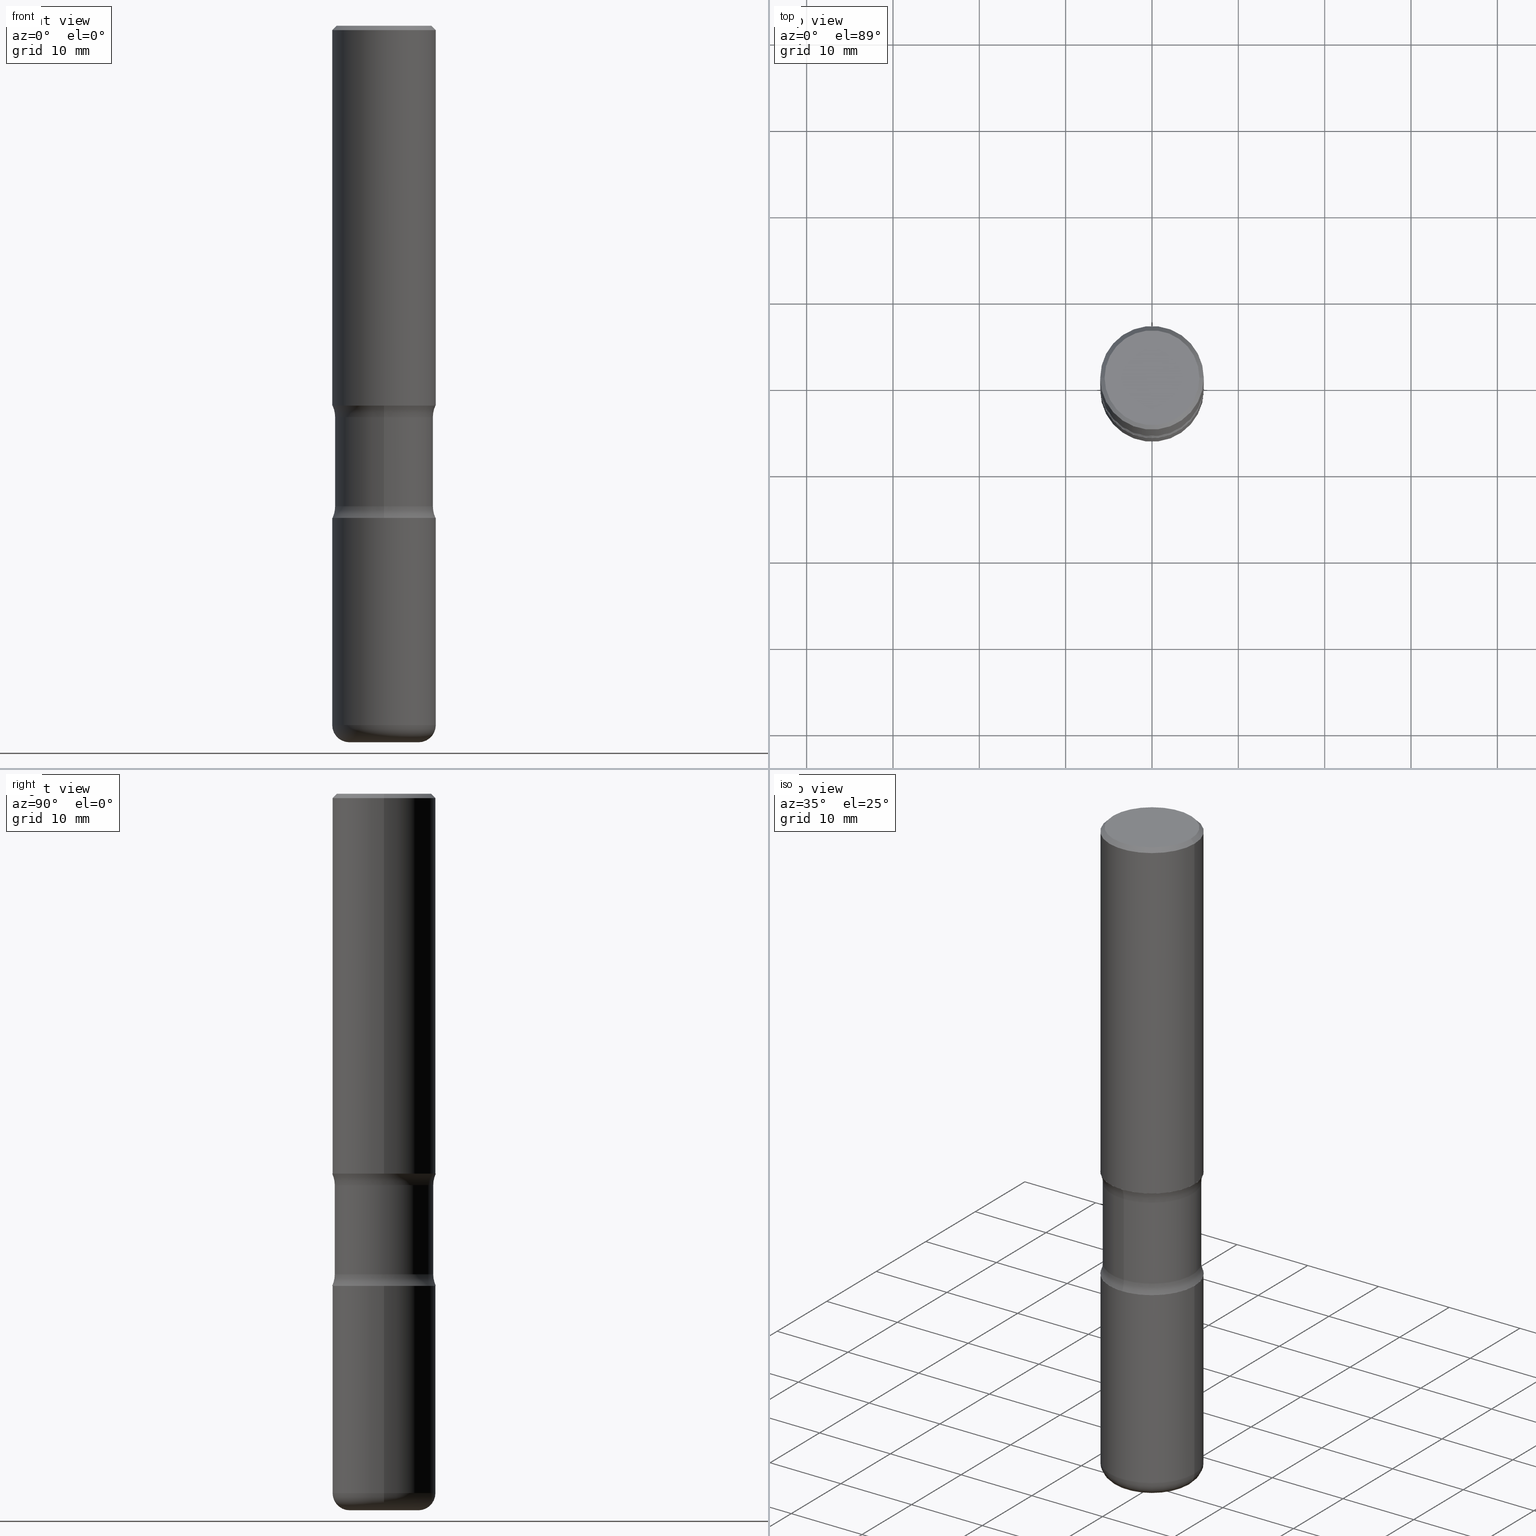
[diagram: canonical four-view strip — front | top / right | iso, engineering-drawing reading convention]
A machine part, canonical four-view strip (front | top / right | iso — engineering-drawing reading convention). The complete STEP part file that produces these views, byte-faithful:
ISO-10303-21;
HEADER;
FILE_DESCRIPTION (( 'STEP AP203' ),
    '1' );
FILE_NAME ('44977.STEP',
    '2024-03-02T04:14:57',
    ( '' ),
    ( '' ),
    'SwSTEP 2.0',
    'SolidWorks 2023',
    '' );
FILE_SCHEMA (( 'CONFIG_CONTROL_DESIGN' ));
ENDSEC;

DATA;
#1 = DIRECTION ( 'NONE',  ( 7.105427357601001859E-15, 1.000000000000000000, -3.491481338843145583E-15 ) ) ;
#2 = ORIENTED_EDGE ( 'NONE', *, *, #215, .T. ) ;
#3 = DIRECTION ( 'NONE',  ( -1.000000000000000000, 6.982962677686265922E-15, -4.883557194083112340E-29 ) ) ;
#4 = PRODUCT_DEFINITION_SHAPE ( 'NONE', 'NONE',  #555 ) ;
#5 =( GEOMETRIC_REPRESENTATION_CONTEXT ( 3 ) GLOBAL_UNCERTAINTY_ASSIGNED_CONTEXT ( ( #521 ) ) GLOBAL_UNIT_ASSIGNED_CONTEXT ( ( #268, #19, #68 ) ) REPRESENTATION_CONTEXT ( 'NONE', 'WORKASPACE' ) );
#6 = LINE ( 'NONE', #220, #358 ) ;
#7 = AXIS2_PLACEMENT_3D ( 'NONE', #257, #124, #303 ) ;
#8 = DIRECTION ( 'NONE',  ( -2.445468806185136597E-29, 3.491481338843145583E-15, 1.000000000000000000 ) ) ;
#9 = DIRECTION ( 'NONE',  ( -6.982962677686266711E-15, -1.000000000000000000, 3.491481338843145583E-15 ) ) ;
#10 = DIRECTION ( 'NONE',  ( 1.000000000000000000, -6.982962677686265922E-15, 4.876176775795935793E-29 ) ) ;
#11 = DIRECTION ( 'NONE',  ( -2.222787628876211285E-29, 3.810373458975038347E-15, 1.000000000000000000 ) ) ;
#12 = CARTESIAN_POINT ( 'NONE',  ( 4.236285612954515195E-29, -6.048293123277985022E-15, -1.732300000000001061 ) ) ;
#13 = DIRECTION ( 'NONE',  ( -2.445468806185136877E-29, 3.491481338843145188E-15, 1.000000000000000000 ) ) ;
#14 = CIRCLE ( 'NONE', #335, 0.1249999999999999029 ) ;
#15 = AXIS2_PLACEMENT_3D ( 'NONE', #270, #435, #191 ) ;
#16 = PERSON_AND_ORGANIZATION_ROLE ( 'design_owner' ) ;
#17 = CYLINDRICAL_SURFACE ( 'NONE', #95, 0.2362000000000004651 ) ;
#18 = EDGE_CURVE ( 'NONE', #84, #348, #438, .T. ) ;
#19 =( NAMED_UNIT ( * ) PLANE_ANGLE_UNIT ( ) SI_UNIT ( $, .RADIAN. ) );
#20 = CARTESIAN_POINT ( 'NONE',  ( 1.649375784469553915E-15, 0.2361999999999926103, -2.244100000000002648 ) ) ;
#21 = ORIENTED_EDGE ( 'NONE', *, *, #83, .F. ) ;
#22 = DIRECTION ( 'NONE',  ( 0.7071067811865471286, -7.319954787623254468E-15, -0.7071067811865479058 ) ) ;
#23 = ADVANCED_FACE ( 'NONE', ( #514 ), #123, .T. ) ;
#24 = EDGE_LOOP ( 'NONE', ( #467, #78, #2, #155 ) ) ;
#25 = PRODUCT_DEFINITION_FORMATION_WITH_SPECIFIED_SOURCE ( 'ANY', '', #523, .NOT_KNOWN. ) ;
#26 = VECTOR ( 'NONE', #410, 39.37007874015748143 ) ;
#27 = CARTESIAN_POINT ( 'NONE',  ( -1.620449627073584394E-15, -0.2362000000000083200, -2.244100000000000872 ) ) ;
#28 = VERTEX_POINT ( 'NONE', #122 ) ;
#29 = CARTESIAN_POINT ( 'NONE',  ( 4.175405657340879278E-46, -5.961372681521788801E-32, -1.707404996040164512E-17 ) ) ;
#30 = ORIENTED_EDGE ( 'NONE', *, *, #163, .T. ) ;
#31 = CARTESIAN_POINT ( 'NONE',  ( 4.467622709432113906E-29, -6.086281597024630126E-15, -1.785102556756280157 ) ) ;
#32 = ORIENTED_EDGE ( 'NONE', *, *, #225, .T. ) ;
#33 = TOROIDAL_SURFACE ( 'NONE', #221, 0.3494999999999997553, 0.1249999999999999029 ) ;
#34 = DIRECTION ( 'NONE',  ( 6.982962677686265922E-15, 1.000000000000000000, -3.810373458975038347E-15 ) ) ;
#35 = VERTEX_POINT ( 'NONE', #431 ) ;
#36 = PERSON_AND_ORGANIZATION_ROLE ( 'classification_officer' ) ;
#37 = VERTEX_POINT ( 'NONE', #167 ) ;
#38 = VERTEX_POINT ( 'NONE', #211 ) ;
#39 = ADVANCED_BREP_SHAPE_REPRESENTATION ( '44977', ( #490, #317, #301, #205 ), #5 ) ;
#40 = CC_DESIGN_SECURITY_CLASSIFICATION ( #386, ( #25 ) ) ;
#41 = CIRCLE ( 'NONE', #513, 0.2362000000000004374 ) ;
#42 = ORIENTED_EDGE ( 'NONE', *, *, #245, .F. ) ;
#43 = DIRECTION ( 'NONE',  ( -2.445468806185136597E-29, 3.491481338843145583E-15, 1.000000000000000000 ) ) ;
#44 = ORIENTED_EDGE ( 'NONE', *, *, #235, .T. ) ;
#45 = DIRECTION ( 'NONE',  ( -2.445468806185136597E-29, 3.491481338843145583E-15, 1.000000000000000000 ) ) ;
#46 = ADVANCED_FACE ( 'NONE', ( #425 ), #157, .T. ) ;
#47 = DIRECTION ( 'NONE',  ( 1.000000000000000000, -6.982962677686267499E-15, 4.883557194083112901E-29 ) ) ;
#48 = EDGE_CURVE ( 'NONE', #282, #469, #51, .T. ) ;
#49 = DIRECTION ( 'NONE',  ( -0.7071067811865471286, 2.468850131082252722E-15, -0.7071067811865479058 ) ) ;
#50 = CARTESIAN_POINT ( 'NONE',  ( 4.350253839501223252E-29, -5.885084136194481957E-15, -1.732300000000001061 ) ) ;
#51 = CIRCLE ( 'NONE', #558, 0.1249999999999999584 ) ;
#52 = DIRECTION ( 'NONE',  ( 1.000000000000000000, -6.982962677686264344E-15, 0.000000000000000000 ) ) ;
#53 = FACE_OUTER_BOUND ( 'NONE', #345, .T. ) ;
#54 = APPROVAL_ROLE ( '' ) ;
#55 = ADVANCED_FACE ( 'NONE', ( #398 ), #212, .T. ) ;
#56 = PERSON ( 'UNSPECIFIED', 'UNSPECIFIED', 'UNSPECIFIED', ('UNSPECIFIED'), ('UNSPECIFIED'), ('UNSPECIFIED') ) ;
#57 = DIRECTION ( 'NONE',  ( 2.222787628876211005E-29, -3.810373458975038347E-15, -1.000000000000000000 ) ) ;
#58 = CARTESIAN_POINT ( 'NONE',  ( 5.487876547960070357E-29, -7.835233272497908651E-15, -2.244100000000001760 ) ) ;
#59 = CIRCLE ( 'NONE', #102, 0.1575000000000005285 ) ;
#60 = CIRCLE ( 'NONE', #503, 0.2362000000000004374 ) ;
#61 = DIRECTION ( 'NONE',  ( 2.222787628876211285E-29, -3.810373458975038347E-15, -1.000000000000000000 ) ) ;
#62 = DIRECTION ( 'NONE',  ( -2.445468806185136597E-29, 3.491481338843145583E-15, 1.000000000000000000 ) ) ;
#63 = EDGE_CURVE ( 'NONE', #201, #37, #346, .T. ) ;
#64 = COORDINATED_UNIVERSAL_TIME_OFFSET ( 5, 0, .BEHIND. ) ;
#65 = ADVANCED_FACE ( 'NONE', ( #400 ), #223, .T. ) ;
#66 = DIRECTION ( 'NONE',  ( 2.222787628876211005E-29, -3.810373458975038347E-15, -1.000000000000000000 ) ) ;
#67 = EDGE_LOOP ( 'NONE', ( #383, #106, #128, #413 ) ) ;
#68 =( NAMED_UNIT ( * ) SI_UNIT ( $, .STERADIAN. ) SOLID_ANGLE_UNIT ( ) );
#69 = CARTESIAN_POINT ( 'NONE',  ( -0.2161999999999999755, 1.544631344304202170E-15, -1.707404996041232555E-17 ) ) ;
#70 = ORIENTED_EDGE ( 'NONE', *, *, #328, .F. ) ;
#71 = AXIS2_PLACEMENT_3D ( 'NONE', #412, #261, #10 ) ;
#72 = CIRCLE ( 'NONE', #338, 0.2244999999999999218 ) ;
#73 = CARTESIAN_POINT ( 'NONE',  ( 0.000000000000000000, 0.000000000000000000, 0.000000000000000000 ) ) ;
#74 = ORIENTED_EDGE ( 'NONE', *, *, #292, .F. ) ;
#75 = CARTESIAN_POINT ( 'NONE',  ( 7.763121964877756720E-29, -1.173553154510475730E-14, -3.267700000000001381 ) ) ;
#76 = VERTEX_POINT ( 'NONE', #229 ) ;
#77 = CARTESIAN_POINT ( 'NONE',  ( 7.798600022924401307E-29, -1.113433398957079310E-14, -3.189000000000000501 ) ) ;
#78 = ORIENTED_EDGE ( 'NONE', *, *, #292, .T. ) ;
#79 = ORGANIZATION ( 'UNSPECIFIED', 'UNSPECIFIED', '' ) ;
#80 = AXIS2_PLACEMENT_3D ( 'NONE', #485, #487, #176 ) ;
#81 = EDGE_LOOP ( 'NONE', ( #392, #475, #294, #119 ) ) ;
#82 = ORIENTED_EDGE ( 'NONE', *, *, #189, .F. ) ;
#83 = EDGE_CURVE ( 'NONE', #282, #340, #41, .T. ) ;
#84 = VERTEX_POINT ( 'NONE', #310 ) ;
#85 = LOCAL_TIME ( 23, 14, 57.00000000000000000, #64 ) ;
#86 = AXIS2_PLACEMENT_3D ( 'NONE', #459, #325, #274 ) ;
#87 = EDGE_LOOP ( 'NONE', ( #277, #250 ) ) ;
#88 = EDGE_CURVE ( 'NONE', #495, #384, #6, .T. ) ;
#89 = DIRECTION ( 'NONE',  ( 2.222787628876211005E-29, -3.810373458975038347E-15, -1.000000000000000000 ) ) ;
#90 = ORIENTED_EDGE ( 'NONE', *, *, #18, .T. ) ;
#91 = CARTESIAN_POINT ( 'NONE',  ( 7.991058417971172834E-29, -1.140911357093774960E-14, -3.267700000000000937 ) ) ;
#92 = CC_DESIGN_PERSON_AND_ORGANIZATION_ASSIGNMENT ( #148, #16, ( #523 ) ) ;
#93 = DIRECTION ( 'NONE',  ( -2.445468806185136597E-29, 3.491481338843145583E-15, 1.000000000000000000 ) ) ;
#94 = AXIS2_PLACEMENT_3D ( 'NONE', #366, #276, #233 ) ;
#95 = AXIS2_PLACEMENT_3D ( 'NONE', #267, #132, #316 ) ;
#96 = CARTESIAN_POINT ( 'NONE',  ( 5.370507678029178581E-29, -7.634035811667759693E-15, -2.191297443243722665 ) ) ;
#97 =( LENGTH_UNIT ( ) NAMED_UNIT ( * ) SI_UNIT ( $, .METRE. ) );
#98 = FACE_OUTER_BOUND ( 'NONE', #536, .T. ) ;
#99 = CC_DESIGN_PERSON_AND_ORGANIZATION_ASSIGNMENT ( #527, #531, ( #25 ) ) ;
#100 = SECURITY_CLASSIFICATION_LEVEL ( 'unclassified' ) ;
#101 = LINE ( 'NONE', #149, #136 ) ;
#102 = AXIS2_PLACEMENT_3D ( 'NONE', #222, #43, #432 ) ;
#103 = COORDINATED_UNIVERSAL_TIME_OFFSET ( 5, 0, .BEHIND. ) ;
#104 = ADVANCED_FACE ( 'NONE', ( #230 ), #394, .T. ) ;
#105 = DIRECTION ( 'NONE',  ( -2.445468806185136597E-29, 3.491481338843145583E-15, 1.000000000000000000 ) ) ;
#106 = ORIENTED_EDGE ( 'NONE', *, *, #489, .T. ) ;
#107 = DIRECTION ( 'NONE',  ( -2.445468806185136877E-29, 3.491481338843145188E-15, 1.000000000000000000 ) ) ;
#108 = ORIENTED_EDGE ( 'NONE', *, *, #351, .T. ) ;
#109 = DATE_TIME_ROLE ( 'classification_date' ) ;
#110 = CARTESIAN_POINT ( 'NONE',  ( 0.2362000000000004651, -1.649375784469499483E-15, 1.151752954443002330E-29 ) ) ;
#111 = ORIENTED_EDGE ( 'NONE', *, *, #245, .T. ) ;
#112 = APPROVAL_STATUS ( 'not_yet_approved' ) ;
#113 = AXIS2_PLACEMENT_3D ( 'NONE', #96, #224, #312 ) ;
#114 = LINE ( 'NONE', #289, #166 ) ;
#115 = ORIENTED_EDGE ( 'NONE', *, *, #328, .T. ) ;
#116 = CARTESIAN_POINT ( 'NONE',  ( 4.460794581293164066E-29, -6.096059865152526970E-15, -1.785102556756280379 ) ) ;
#117 = ORIENTED_EDGE ( 'NONE', *, *, #300, .T. ) ;
#118 = CARTESIAN_POINT ( 'NONE',  ( 5.370507678029178581E-29, -7.634035811667759693E-15, -2.191297443243722665 ) ) ;
#119 = ORIENTED_EDGE ( 'NONE', *, *, #215, .F. ) ;
#120 = CIRCLE ( 'NONE', #436, 0.2245000000000001161 ) ;
#121 = ADVANCED_FACE ( 'NONE', ( #188 ), #17, .T. ) ;
#122 = CARTESIAN_POINT ( 'NONE',  ( 1.567675121140621237E-15, 0.2244999999999924833, -2.191297443243723553 ) ) ;
#123 = CYLINDRICAL_SURFACE ( 'NONE', #7, 0.2362000000000002709 ) ;
#124 = DIRECTION ( 'NONE',  ( -2.445468806185136597E-29, 3.491481338843145583E-15, 1.000000000000000000 ) ) ;
#125 = TOROIDAL_SURFACE ( 'NONE', #154, 0.3495000000000000329, 0.1249999999999999861 ) ;
#126 = FACE_OUTER_BOUND ( 'NONE', #67, .T. ) ;
#127 = AXIS2_PLACEMENT_3D ( 'NONE', #227, #11, #532 ) ;
#128 = ORIENTED_EDGE ( 'NONE', *, *, #63, .T. ) ;
#129 = CARTESIAN_POINT ( 'NONE',  ( -0.2362000000000000766, 1.579546157692633424E-15, -0.02000000000000013572 ) ) ;
#130 = DIRECTION ( 'NONE',  ( -2.445468806185136597E-29, 3.491481338843145583E-15, 1.000000000000000000 ) ) ;
#131 = CARTESIAN_POINT ( 'NONE',  ( 1.863038902682376506E-29, -1.302620709348179108E-14, -2.244100000000001760 ) ) ;
#132 = DIRECTION ( 'NONE',  ( -2.445468806185136597E-29, 3.491481338843145583E-15, 1.000000000000000000 ) ) ;
#133 = PLANE ( 'NONE',  #247 ) ;
#134 = AXIS2_PLACEMENT_3D ( 'NONE', #91, #8, #295 ) ;
#135 = DIRECTION ( 'NONE',  ( 2.222787628876211005E-29, -3.810373458975038347E-15, -1.000000000000000000 ) ) ;
#136 = VECTOR ( 'NONE', #329, 39.37007874015748143 ) ;
#137 = PERSON_AND_ORGANIZATION ( #56, #79 ) ;
#138 = FACE_OUTER_BOUND ( 'NONE', #547, .T. ) ;
#139 = CALENDAR_DATE ( 2024, 1, 3 ) ;
#140 = DIRECTION ( 'NONE',  ( 2.438088387897960049E-29, -3.491481338843145188E-15, -1.000000000000000000 ) ) ;
#141 = EDGE_CURVE ( 'NONE', #469, #28, #266, .T. ) ;
#142 = CC_DESIGN_PERSON_AND_ORGANIZATION_ASSIGNMENT ( #502, #36, ( #386 ) ) ;
#143 = DIRECTION ( 'NONE',  ( 1.000000000000000000, 0.000000000000000000, 0.000000000000000000 ) ) ;
#144 = DIRECTION ( 'NONE',  ( 1.000000000000000000, -6.982962677686266711E-15, 0.000000000000000000 ) ) ;
#145 = AXIS2_PLACEMENT_3D ( 'NONE', #309, #399, #517 ) ;
#146 = VERTEX_POINT ( 'NONE', #440 ) ;
#147 = CLOSED_SHELL ( 'NONE', ( #524, #65, #187, #385, #121, #507 ) ) ;
#148 = PERSON_AND_ORGANIZATION ( #56, #79 ) ;
#149 = CARTESIAN_POINT ( 'NONE',  ( -1.540181800499631152E-15, -0.2245000000000117735, -3.267700000000000049 ) ) ;
#150 = ORIENTED_EDGE ( 'NONE', *, *, #308, .T. ) ;
#151 = CARTESIAN_POINT ( 'NONE',  ( 1.567675121140644508E-15, 0.2244999999999882645, -3.267700000000002269 ) ) ;
#152 = ORIENTED_EDGE ( 'NONE', *, *, #308, .F. ) ;
#153 = CARTESIAN_POINT ( 'NONE',  ( 4.467622709432113906E-29, -6.086281597024630126E-15, -1.785102556756280157 ) ) ;
#154 = AXIS2_PLACEMENT_3D ( 'NONE', #226, #178, #474 ) ;
#155 = ORIENTED_EDGE ( 'NONE', *, *, #141, .F. ) ;
#156 = PERSON_AND_ORGANIZATION ( #56, #79 ) ;
#157 = CONICAL_SURFACE ( 'NONE', #185, 0.2362000000000000766, 0.7853981633974477239 ) ;
#158 = DIRECTION ( 'NONE',  ( -1.000000000000000000, 6.982962677686265922E-15, -4.876176775795935793E-29 ) ) ;
#159 = ORIENTED_EDGE ( 'NONE', *, *, #351, .F. ) ;
#160 = ADVANCED_FACE ( 'NONE', ( #53 ), #269, .F. ) ;
#161 = DIRECTION ( 'NONE',  ( 1.000000000000000000, -6.982962677686267499E-15, 4.883557194083112901E-29 ) ) ;
#162 = CARTESIAN_POINT ( 'NONE',  ( -2.397744050221097052E-15, -0.3495000000000076934, -2.191297443243721332 ) ) ;
#163 = EDGE_CURVE ( 'NONE', #495, #376, #360, .T. ) ;
#164 = ORIENTED_EDGE ( 'NONE', *, *, #508, .F. ) ;
#165 = CIRCLE ( 'NONE', #557, 0.07870000000000021423 ) ;
#166 = VECTOR ( 'NONE', #22, 39.37007874015748143 ) ;
#167 = CARTESIAN_POINT ( 'NONE',  ( 0.2362000000000006317, -1.278370977404029278E-14, -3.189000000000000501 ) ) ;
#168 = ORIENTED_EDGE ( 'NONE', *, *, #540, .F. ) ;
#169 = DIRECTION ( 'NONE',  ( 2.222787628876211005E-29, -3.810373458975038347E-15, -1.000000000000000000 ) ) ;
#170 = ORIENTED_EDGE ( 'NONE', *, *, #489, .F. ) ;
#171 = AXIS2_PLACEMENT_3D ( 'NONE', #505, #3, #420 ) ;
#172 = FACE_OUTER_BOUND ( 'NONE', #417, .T. ) ;
#173 = AXIS2_PLACEMENT_3D ( 'NONE', #75, #66, #284 ) ;
#174 = DIRECTION ( 'NONE',  ( 6.982962677686265922E-15, 1.000000000000000000, -3.469747663417770691E-15 ) ) ;
#175 = FACE_OUTER_BOUND ( 'NONE', #515, .T. ) ;
#176 = DIRECTION ( 'NONE',  ( -1.000000000000000000, 6.982962677686266711E-15, 0.000000000000000000 ) ) ;
#177 = EDGE_CURVE ( 'NONE', #427, #35, #466, .T. ) ;
#178 = DIRECTION ( 'NONE',  ( 2.222787628876211005E-29, -3.810373458975038347E-15, -1.000000000000000000 ) ) ;
#179 = DESIGN_CONTEXT ( 'detailed design', #511, 'design' ) ;
#180 = DIRECTION ( 'NONE',  ( 6.982962677686265922E-15, 1.000000000000000000, -3.469747663417772663E-15 ) ) ;
#181 = DATE_AND_TIME ( #278, #344 ) ;
#182 = AXIS2_PLACEMENT_3D ( 'NONE', #528, #355, #47 ) ;
#183 = APPROVAL ( #228, 'UNSPECIFIED' ) ;
#184 = DIRECTION ( 'NONE',  ( -2.445468806185136597E-29, 3.491481338843145583E-15, 1.000000000000000000 ) ) ;
#185 = AXIS2_PLACEMENT_3D ( 'NONE', #209, #387, #552 ) ;
#186 = APPLICATION_PROTOCOL_DEFINITION ( 'international standard', 'config_control_design', 1994, #511 ) ;
#187 = ADVANCED_FACE ( 'NONE', ( #98 ), #443, .T. ) ;
#188 = FACE_OUTER_BOUND ( 'NONE', #234, .T. ) ;
#189 = EDGE_CURVE ( 'NONE', #206, #38, #260, .T. ) ;
#190 = APPLICATION_PROTOCOL_DEFINITION ( 'international standard', 'config_control_design', 1994, #539 ) ;
#191 = DIRECTION ( 'NONE',  ( 6.982962677686265922E-15, 1.000000000000000000, -3.810373458975038347E-15 ) ) ;
#192 = VERTEX_POINT ( 'NONE', #361 ) ;
#193 = DIRECTION ( 'NONE',  ( 6.982962677686265922E-15, 1.000000000000000000, -3.810373458975038347E-15 ) ) ;
#194 = FACE_OUTER_BOUND ( 'NONE', #238, .T. ) ;
#195 = ORIENTED_EDGE ( 'NONE', *, *, #259, .T. ) ;
#196 = EDGE_CURVE ( 'NONE', #551, #38, #60, .T. ) ;
#197 = DIRECTION ( 'NONE',  ( -2.445468806185136597E-29, 3.491481338843145583E-15, 1.000000000000000000 ) ) ;
#198 = ORIENTED_EDGE ( 'NONE', *, *, #63, .F. ) ;
#199 = DATE_AND_TIME ( #418, #403 ) ;
#200 = DIRECTION ( 'NONE',  ( 6.982962677686265922E-15, 1.000000000000000000, -3.650576383515720449E-15 ) ) ;
#201 = VERTEX_POINT ( 'NONE', #433 ) ;
#202 = CALENDAR_DATE ( 2024, 1, 3 ) ;
#203 = LINE ( 'NONE', #379, #455 ) ;
#204 = CC_DESIGN_DATE_AND_TIME_ASSIGNMENT ( #488, #447, ( #555 ) ) ;
#205 = AXIS2_PLACEMENT_3D ( 'NONE', #442, #369, #143 ) ;
#206 = VERTEX_POINT ( 'NONE', #522 ) ;
#207 = CARTESIAN_POINT ( 'NONE',  ( 7.798600022924401307E-29, -1.113433398957079310E-14, -3.189000000000000501 ) ) ;
#208 = ADVANCED_FACE ( 'NONE', ( #138 ), #529, .F. ) ;
#209 = CARTESIAN_POINT ( 'NONE',  ( 4.890937612370306439E-31, -6.982962677686338448E-17, -0.02000000000000013572 ) ) ;
#210 = DIRECTION ( 'NONE',  ( 1.000000000000000000, -6.982962677686266711E-15, 4.875778670202486388E-29 ) ) ;
#211 = CARTESIAN_POINT ( 'NONE',  ( -0.2362000000000004374, -7.806481689168991326E-15, -2.244100000000001760 ) ) ;
#212 = CONICAL_SURFACE ( 'NONE', #80, 0.2362000000000000766, 0.7853981633974477239 ) ;
#213 = CC_DESIGN_APPROVAL ( #480, ( #386 ) ) ;
#214 = CIRCLE ( 'NONE', #94, 0.2362000000000004651 ) ;
#215 = EDGE_CURVE ( 'NONE', #76, #28, #263, .T. ) ;
#216 = EDGE_LOOP ( 'NONE', ( #460, #299, #472, #198 ) ) ;
#217 = DIRECTION ( 'NONE',  ( 1.000000000000000000, -6.982962677686266711E-15, 4.876176775795935793E-29 ) ) ;
#218 = ORIENTED_EDGE ( 'NONE', *, *, #177, .T. ) ;
#219 = FACE_OUTER_BOUND ( 'NONE', #468, .T. ) ;
#220 = CARTESIAN_POINT ( 'NONE',  ( -0.2362000000000002709, 1.678301941865358564E-15, -1.161852468318210018E-29 ) ) ;
#221 = AXIS2_PLACEMENT_3D ( 'NONE', #116, #353, #34 ) ;
#222 = CARTESIAN_POINT ( 'NONE',  ( 7.991058417971172834E-29, -1.140911357093774960E-14, -3.267700000000000937 ) ) ;
#223 = TOROIDAL_SURFACE ( 'NONE', #182, 0.1575000000000005285, 0.07870000000000022811 ) ;
#224 = DIRECTION ( 'NONE',  ( 2.222787628876211005E-29, -3.810373458975038347E-15, -1.000000000000000000 ) ) ;
#225 = EDGE_CURVE ( 'NONE', #38, #551, #283, .T. ) ;
#226 = CARTESIAN_POINT ( 'NONE',  ( 5.358749542525768268E-29, -7.650874130940154626E-15, -2.191297443243722665 ) ) ;
#227 = CARTESIAN_POINT ( 'NONE',  ( 1.863038902682376506E-29, -1.302620709348179108E-14, -2.244100000000001760 ) ) ;
#228 = APPROVAL_STATUS ( 'not_yet_approved' ) ;
#229 = CARTESIAN_POINT ( 'NONE',  ( 1.567675121140610785E-15, 0.2244999999999938434, -1.785102556756280823 ) ) ;
#230 = FACE_OUTER_BOUND ( 'NONE', #81, .T. ) ;
#231 = VECTOR ( 'NONE', #402, 39.37007874015748143 ) ;
#232 = DIRECTION ( 'NONE',  ( 1.000000000000000000, -6.982962677686266711E-15, 4.875778670202486388E-29 ) ) ;
#233 = DIRECTION ( 'NONE',  ( 1.000000000000000000, -6.982962677686266711E-15, 0.000000000000000000 ) ) ;
#234 = EDGE_LOOP ( 'NONE', ( #82, #542, #195, #415 ) ) ;
#235 = EDGE_CURVE ( 'NONE', #35, #427, #370, .T. ) ;
#236 = PLANE ( 'NONE',  #71 ) ;
#237 = LOCAL_TIME ( 23, 14, 57.00000000000000000, #331 ) ;
#238 = EDGE_LOOP ( 'NONE', ( #70, #422 ) ) ;
#239 = AXIS2_PLACEMENT_3D ( 'NONE', #319, #9, #441 ) ;
#240 = DATE_AND_TIME ( #202, #237 ) ;
#241 = CARTESIAN_POINT ( 'NONE',  ( 4.350253839501223252E-29, -5.885084136194481957E-15, -1.732300000000001061 ) ) ;
#242 = ORIENTED_EDGE ( 'NONE', *, *, #320, .F. ) ;
#243 = DIRECTION ( 'NONE',  ( -2.445468806185136597E-29, 3.491481338843145583E-15, 1.000000000000000000 ) ) ;
#244 = ORIENTED_EDGE ( 'NONE', *, *, #367, .T. ) ;
#245 = EDGE_CURVE ( 'NONE', #348, #84, #404, .T. ) ;
#246 = CC_DESIGN_PERSON_AND_ORGANIZATION_ASSIGNMENT ( #137, #321, ( #25 ) ) ;
#247 = AXIS2_PLACEMENT_3D ( 'NONE', #12, #61, #193 ) ;
#248 = ORIENTED_EDGE ( 'NONE', *, *, #540, .T. ) ;
#249 = AXIS2_PLACEMENT_3D ( 'NONE', #241, #414, #281 ) ;
#250 = ORIENTED_EDGE ( 'NONE', *, *, #235, .F. ) ;
#251 = ORIENTED_EDGE ( 'NONE', *, *, #88, .F. ) ;
#252 = EDGE_CURVE ( 'NONE', #347, #469, #101, .T. ) ;
#253 = EDGE_LOOP ( 'NONE', ( #374, #117, #380, #290 ) ) ;
#254 = AXIS2_PLACEMENT_3D ( 'NONE', #207, #341, #465 ) ;
#255 = AXIS2_PLACEMENT_3D ( 'NONE', #494, #550, #158 ) ;
#256 = CARTESIAN_POINT ( 'NONE',  ( -0.2362000000000004651, -1.380759433162061850E-15, -1.732300000000001061 ) ) ;
#257 = CARTESIAN_POINT ( 'NONE',  ( 0.000000000000000000, 0.000000000000000000, 0.000000000000000000 ) ) ;
#258 = DIRECTION ( 'NONE',  ( 2.438088387897960049E-29, -3.491481338843145188E-15, -1.000000000000000000 ) ) ;
#259 = EDGE_CURVE ( 'NONE', #37, #551, #500, .T. ) ;
#260 = LINE ( 'NONE', #477, #231 ) ;
#261 = DIRECTION ( 'NONE',  ( -2.438088387897960049E-29, 3.491481338843145188E-15, 1.000000000000000000 ) ) ;
#262 = ADVANCED_FACE ( 'NONE', ( #416 ), #408, .T. ) ;
#263 = LINE ( 'NONE', #151, #388 ) ;
#264 = LOCAL_TIME ( 23, 14, 57.00000000000000000, #103 ) ;
#265 = CARTESIAN_POINT ( 'NONE',  ( 7.798600022924401307E-29, -1.113433398957079310E-14, -3.189000000000000501 ) ) ;
#266 = CIRCLE ( 'NONE', #113, 0.2245000000000001161 ) ;
#267 = CARTESIAN_POINT ( 'NONE',  ( 0.000000000000000000, 0.000000000000000000, 0.000000000000000000 ) ) ;
#268 =( CONVERSION_BASED_UNIT ( 'INCH', #401 ) LENGTH_UNIT ( ) NAMED_UNIT ( #553 ) );
#269 = PLANE ( 'NONE',  #127 ) ;
#270 = CARTESIAN_POINT ( 'NONE',  ( 4.460794581293164066E-29, -6.096059865152526970E-15, -1.785102556756280379 ) ) ;
#271 = CALENDAR_DATE ( 2024, 1, 3 ) ;
#272 = EDGE_CURVE ( 'NONE', #192, #384, #426, .T. ) ;
#273 = TOROIDAL_SURFACE ( 'NONE', #296, 0.1575000000000005285, 0.07870000000000022811 ) ;
#274 = DIRECTION ( 'NONE',  ( 1.000000000000000000, -6.982962677686266711E-15, 0.000000000000000000 ) ) ;
#275 = PERSON_AND_ORGANIZATION ( #56, #79 ) ;
#276 = DIRECTION ( 'NONE',  ( -2.445468806185136597E-29, 3.491481338843145583E-15, 1.000000000000000000 ) ) ;
#277 = ORIENTED_EDGE ( 'NONE', *, *, #177, .F. ) ;
#278 = CALENDAR_DATE ( 2024, 1, 3 ) ;
#279 = EDGE_CURVE ( 'NONE', #76, #347, #287, .T. ) ;
#280 = PRODUCT_RELATED_PRODUCT_CATEGORY ( 'detail', '', ( #523 ) ) ;
#281 = DIRECTION ( 'NONE',  ( 6.982962677686265922E-15, 1.000000000000000000, -3.469747663417772663E-15 ) ) ;
#282 = VERTEX_POINT ( 'NONE', #27 ) ;
#283 = CIRCLE ( 'NONE', #493, 0.2362000000000004374 ) ;
#284 = DIRECTION ( 'NONE',  ( 6.982962677686265922E-15, 1.000000000000000000, -4.867435178020957969E-15 ) ) ;
#285 = CIRCLE ( 'NONE', #134, 0.1575000000000005285 ) ;
#286 = EDGE_LOOP ( 'NONE', ( #462, #32 ) ) ;
#287 = CIRCLE ( 'NONE', #324, 0.2244999999999999218 ) ;
#288 = CC_DESIGN_PERSON_AND_ORGANIZATION_ASSIGNMENT ( #323, #492, ( #555 ) ) ;
#289 = CARTESIAN_POINT ( 'NONE',  ( 0.2362000000000000766, -1.690279253850499560E-15, -0.02000000000000013572 ) ) ;
#290 = ORIENTED_EDGE ( 'NONE', *, *, #437, .F. ) ;
#291 = ADVANCED_FACE ( 'NONE', ( #336 ), #546, .T. ) ;
#292 = EDGE_CURVE ( 'NONE', #347, #76, #72, .T. ) ;
#293 = DIRECTION ( 'NONE',  ( -2.445468806185136597E-29, 3.491481338843145583E-15, 1.000000000000000000 ) ) ;
#294 = ORIENTED_EDGE ( 'NONE', *, *, #470, .F. ) ;
#295 = DIRECTION ( 'NONE',  ( 1.000000000000000000, -6.982962677686262766E-15, 0.000000000000000000 ) ) ;
#296 = AXIS2_PLACEMENT_3D ( 'NONE', #265, #293, #161 ) ;
#297 = ORIENTED_EDGE ( 'NONE', *, *, #48, .T. ) ;
#298 = AXIS2_PLACEMENT_3D ( 'NONE', #371, #197, #144 ) ;
#299 = ORIENTED_EDGE ( 'NONE', *, *, #463, .T. ) ;
#300 = EDGE_CURVE ( 'NONE', #84, #192, #114, .T. ) ;
#301 = MANIFOLD_SOLID_BREP ( 'Body-Move/Copy2[4]', #381 ) ;
#302 = ORIENTED_EDGE ( 'NONE', *, *, #470, .T. ) ;
#303 = DIRECTION ( 'NONE',  ( 1.000000000000000000, -6.982962677686266711E-15, 4.876176775795936353E-29 ) ) ;
#304 = AXIS2_PLACEMENT_3D ( 'NONE', #77, #45, #52 ) ;
#305 = CARTESIAN_POINT ( 'NONE',  ( -1.580315713786620296E-15, -0.2245000000000077767, -2.191297443243721776 ) ) ;
#306 = AXIS2_PLACEMENT_3D ( 'NONE', #364, #184, #322 ) ;
#307 = ORIENTED_EDGE ( 'NONE', *, *, #189, .T. ) ;
#308 = EDGE_CURVE ( 'NONE', #384, #192, #483, .T. ) ;
#309 = CARTESIAN_POINT ( 'NONE',  ( 5.358749542525768268E-29, -7.650874130940154626E-15, -2.191297443243722665 ) ) ;
#310 = CARTESIAN_POINT ( 'NONE',  ( 0.2161999999999999755, -1.586759460484352185E-15, -1.707404996039081677E-17 ) ) ;
#311 = CYLINDRICAL_SURFACE ( 'NONE', #444, 0.2362000000000004651 ) ;
#312 = DIRECTION ( 'NONE',  ( 6.982962677686265922E-15, 1.000000000000000000, -3.650576383515717294E-15 ) ) ;
#313 = VECTOR ( 'NONE', #49, 39.37007874015748143 ) ;
#314 = FACE_OUTER_BOUND ( 'NONE', #87, .T. ) ;
#315 = AXIS2_PLACEMENT_3D ( 'NONE', #29, #105, #232 ) ;
#316 = DIRECTION ( 'NONE',  ( 1.000000000000000000, -6.982962677686266711E-15, 4.876176775795935793E-29 ) ) ;
#317 = MANIFOLD_SOLID_BREP ( 'Body-Move/Copy2[2]', #396 ) ;
#318 = CARTESIAN_POINT ( 'NONE',  ( 0.2362000000000004374, -9.484609056967408331E-15, -2.244100000000001760 ) ) ;
#319 = CARTESIAN_POINT ( 'NONE',  ( 0.1575000000000005285, -1.223415061130638295E-14, -3.189000000000000501 ) ) ;
#320 = EDGE_CURVE ( 'NONE', #376, #192, #203, .T. ) ;
#321 = PERSON_AND_ORGANIZATION_ROLE ( 'design_supplier' ) ;
#322 = DIRECTION ( 'NONE',  ( 1.000000000000000000, -6.982962677686266711E-15, 0.000000000000000000 ) ) ;
#323 = PERSON_AND_ORGANIZATION ( #56, #79 ) ;
#324 = AXIS2_PLACEMENT_3D ( 'NONE', #153, #456, #200 ) ;
#325 = DIRECTION ( 'NONE',  ( -2.445468806185136597E-29, 3.491481338843145583E-15, 1.000000000000000000 ) ) ;
#326 = ORIENTED_EDGE ( 'NONE', *, *, #196, .F. ) ;
#327 = APPROVAL_STATUS ( 'not_yet_approved' ) ;
#328 = EDGE_CURVE ( 'NONE', #376, #495, #214, .T. ) ;
#329 = DIRECTION ( 'NONE',  ( 2.222787628876211005E-29, -3.810373458975038347E-15, -1.000000000000000000 ) ) ;
#330 = EDGE_LOOP ( 'NONE', ( #21, #297, #368, #159 ) ) ;
#331 = COORDINATED_UNIVERSAL_TIME_OFFSET ( 5, 0, .BEHIND. ) ;
#332 = DIRECTION ( 'NONE',  ( 2.222787628876211005E-29, -3.810373458975038347E-15, -1.000000000000000000 ) ) ;
#333 = ORIENTED_EDGE ( 'NONE', *, *, #259, .F. ) ;
#334 = APPROVAL_DATE_TIME ( #240, #480 ) ;
#335 = AXIS2_PLACEMENT_3D ( 'NONE', #484, #363, #486 ) ;
#336 = FACE_OUTER_BOUND ( 'NONE', #560, .T. ) ;
#337 = ORIENTED_EDGE ( 'NONE', *, *, #320, .T. ) ;
#338 = AXIS2_PLACEMENT_3D ( 'NONE', #31, #497, #504 ) ;
#339 = CARTESIAN_POINT ( 'NONE',  ( 2.440545455851403984E-15, 0.3494999999999924278, -2.191297443243723997 ) ) ;
#340 = VERTEX_POINT ( 'NONE', #20 ) ;
#341 = DIRECTION ( 'NONE',  ( -2.445468806185136597E-29, 3.491481338843145583E-15, 1.000000000000000000 ) ) ;
#342 = DIRECTION ( 'NONE',  ( 1.000000000000000000, -6.860497997771530774E-15, 4.836893577482214338E-29 ) ) ;
#343 = ADVANCED_FACE ( 'NONE', ( #544 ), #448, .F. ) ;
#344 = LOCAL_TIME ( 23, 14, 57.00000000000000000, #496 ) ;
#345 = EDGE_LOOP ( 'NONE', ( #501, #449 ) ) ;
#346 = CIRCLE ( 'NONE', #239, 0.07870000000000021423 ) ;
#347 = VERTEX_POINT ( 'NONE', #451 ) ;
#348 = VERTEX_POINT ( 'NONE', #69 ) ;
#349 = CARTESIAN_POINT ( 'NONE',  ( 5.487876547960070357E-29, -7.835233272497908651E-15, -2.244100000000001760 ) ) ;
#350 = ORIENTED_EDGE ( 'NONE', *, *, #367, .F. ) ;
#351 = EDGE_CURVE ( 'NONE', #340, #28, #548, .T. ) ;
#352 = CIRCLE ( 'NONE', #171, 0.1249999999999999029 ) ;
#353 = DIRECTION ( 'NONE',  ( 2.222787628876211005E-29, -3.810373458975038347E-15, -1.000000000000000000 ) ) ;
#354 = DIRECTION ( 'NONE',  ( 1.000000000000000000, -6.982962677686264344E-15, 0.000000000000000000 ) ) ;
#355 = DIRECTION ( 'NONE',  ( -2.445468806185136597E-29, 3.491481338843145583E-15, 1.000000000000000000 ) ) ;
#356 = APPROVAL_DATE_TIME ( #181, #183 ) ;
#357 = CARTESIAN_POINT ( 'NONE',  ( 1.590673181943243464E-28, -7.341872789436314080E-17, -3.267700000000000937 ) ) ;
#358 = VECTOR ( 'NONE', #13, 39.37007874015748143 ) ;
#359 = APPROVAL_PERSON_ORGANIZATION ( #275, #183, #409 ) ;
#360 = CIRCLE ( 'NONE', #306, 0.2362000000000004651 ) ;
#361 = CARTESIAN_POINT ( 'NONE',  ( 0.2362000000000000766, -1.690279253850499560E-15, -0.02000000000000013572 ) ) ;
#362 = ADVANCED_FACE ( 'NONE', ( #194 ), #236, .F. ) ;
#363 = DIRECTION ( 'NONE',  ( 1.000000000000000000, -6.860497997771530774E-15, 4.836893577482214338E-29 ) ) ;
#364 = CARTESIAN_POINT ( 'NONE',  ( 4.236285612954515195E-29, -6.048293123277985022E-15, -1.732300000000001061 ) ) ;
#365 = DATE_AND_TIME ( #271, #85 ) ;
#366 = CARTESIAN_POINT ( 'NONE',  ( 4.236285612954515195E-29, -6.048293123277985022E-15, -1.732300000000001061 ) ) ;
#367 = EDGE_CURVE ( 'NONE', #76, #427, #352, .T. ) ;
#368 = ORIENTED_EDGE ( 'NONE', *, *, #141, .T. ) ;
#369 = DIRECTION ( 'NONE',  ( 0.000000000000000000, 0.000000000000000000, 1.000000000000000000 ) ) ;
#370 = CIRCLE ( 'NONE', #249, 0.2362000000000002986 ) ;
#371 = CARTESIAN_POINT ( 'NONE',  ( 4.890937612370306439E-31, -6.982962677686338448E-17, -0.02000000000000013572 ) ) ;
#372 = ORIENTED_EDGE ( 'NONE', *, *, #88, .T. ) ;
#373 = DIRECTION ( 'NONE',  ( 1.000000000000000000, -6.982962677686264344E-15, 0.000000000000000000 ) ) ;
#374 = ORIENTED_EDGE ( 'NONE', *, *, #18, .F. ) ;
#375 = DIRECTION ( 'NONE',  ( 1.000000000000000000, -6.982962677686266711E-15, 4.876176775795936353E-29 ) ) ;
#376 = VERTEX_POINT ( 'NONE', #461 ) ;
#377 = COORDINATED_UNIVERSAL_TIME_OFFSET ( 5, 0, .BEHIND. ) ;
#378 = AXIS2_PLACEMENT_3D ( 'NONE', #349, #89, #520 ) ;
#379 = CARTESIAN_POINT ( 'NONE',  ( 0.2362000000000002709, -1.649375784469498103E-15, 1.151752954443001489E-29 ) ) ;
#380 = ORIENTED_EDGE ( 'NONE', *, *, #272, .T. ) ;
#381 = CLOSED_SHELL ( 'NONE', ( #104, #430, #445, #208, #533, #160, #407, #262 ) ) ;
#382 = CARTESIAN_POINT ( 'NONE',  ( -0.1575000000000005285, -1.001522918074863234E-14, -3.189000000000000501 ) ) ;
#383 = ORIENTED_EDGE ( 'NONE', *, *, #463, .F. ) ;
#384 = VERTEX_POINT ( 'NONE', #434 ) ;
#385 = ADVANCED_FACE ( 'NONE', ( #126 ), #273, .T. ) ;
#386 = SECURITY_CLASSIFICATION ( '', '', #100 ) ;
#387 = DIRECTION ( 'NONE',  ( 2.445468806185136597E-29, -3.491481338843145583E-15, -1.000000000000000000 ) ) ;
#388 = VECTOR ( 'NONE', #332, 39.37007874015748143 ) ;
#389 = APPROVAL ( #327, 'UNSPECIFIED' ) ;
#390 = EDGE_LOOP ( 'NONE', ( #111, #90 ) ) ;
#391 = FACE_OUTER_BOUND ( 'NONE', #330, .T. ) ;
#392 = ORIENTED_EDGE ( 'NONE', *, *, #279, .T. ) ;
#393 = PLANE ( 'NONE',  #530 ) ;
#394 = CYLINDRICAL_SURFACE ( 'NONE', #549, 0.2245000000000000329 ) ;
#395 = TOROIDAL_SURFACE ( 'NONE', #145, 0.3495000000000000329, 0.1249999999999999861 ) ;
#396 = CLOSED_SHELL ( 'NONE', ( #291, #55, #46, #343, #362, #23 ) ) ;
#397 = DIRECTION ( 'NONE',  ( -1.000000000000000000, 6.982962677686265922E-15, -4.876176775795935793E-29 ) ) ;
#398 = FACE_OUTER_BOUND ( 'NONE', #253, .T. ) ;
#399 = DIRECTION ( 'NONE',  ( 2.222787628876211005E-29, -3.810373458975038347E-15, -1.000000000000000000 ) ) ;
#400 = FACE_OUTER_BOUND ( 'NONE', #216, .T. ) ;
#401 = LENGTH_MEASURE_WITH_UNIT ( LENGTH_MEASURE( 0.02539999999999999897 ), #97 );
#402 = DIRECTION ( 'NONE',  ( -2.445468806185136877E-29, 3.491481338843145188E-15, 1.000000000000000000 ) ) ;
#403 = LOCAL_TIME ( 23, 14, 57.00000000000000000, #377 ) ;
#404 = CIRCLE ( 'NONE', #315, 0.2161999999999999755 ) ;
#405 = CARTESIAN_POINT ( 'NONE',  ( 5.487876547960070357E-29, -7.835233272497908651E-15, -2.244100000000001760 ) ) ;
#406 = PERSON_AND_ORGANIZATION ( #56, #79 ) ;
#407 = ADVANCED_FACE ( 'NONE', ( #219 ), #125, .F. ) ;
#408 = CYLINDRICAL_SURFACE ( 'NONE', #173, 0.2245000000000000329 ) ;
#409 = APPROVAL_ROLE ( '' ) ;
#410 = DIRECTION ( 'NONE',  ( -2.445468806185136877E-29, 3.491481338843145188E-15, 1.000000000000000000 ) ) ;
#411 = EDGE_LOOP ( 'NONE', ( #251, #30, #337, #152 ) ) ;
#412 = CARTESIAN_POINT ( 'NONE',  ( 4.236285612954515195E-29, -6.048293123277985022E-15, -1.732300000000001061 ) ) ;
#413 = ORIENTED_EDGE ( 'NONE', *, *, #423, .F. ) ;
#414 = DIRECTION ( 'NONE',  ( 2.222787628876211005E-29, -3.810373458975038347E-15, -1.000000000000000000 ) ) ;
#415 = ORIENTED_EDGE ( 'NONE', *, *, #225, .F. ) ;
#416 = FACE_OUTER_BOUND ( 'NONE', #24, .T. ) ;
#417 = EDGE_LOOP ( 'NONE', ( #74, #248, #44, #350 ) ) ;
#418 = CALENDAR_DATE ( 2024, 1, 3 ) ;
#419 = CIRCLE ( 'NONE', #304, 0.2362000000000005484 ) ;
#420 = DIRECTION ( 'NONE',  ( -6.982962677686264344E-15, -1.000000000000000000, 0.000000000000000000 ) ) ;
#421 = AXIS2_PLACEMENT_3D ( 'NONE', #73, #243, #375 ) ;
#422 = ORIENTED_EDGE ( 'NONE', *, *, #163, .F. ) ;
#423 = EDGE_CURVE ( 'NONE', #206, #37, #419, .T. ) ;
#424 = ORIENTED_EDGE ( 'NONE', *, *, #458, .T. ) ;
#425 = FACE_OUTER_BOUND ( 'NONE', #452, .T. ) ;
#426 = CIRCLE ( 'NONE', #298, 0.2362000000000000766 ) ;
#427 = VERTEX_POINT ( 'NONE', #439 ) ;
#428 = AXIS2_PLACEMENT_3D ( 'NONE', #357, #140, #491 ) ;
#429 = FACE_OUTER_BOUND ( 'NONE', #286, .T. ) ;
#430 = ADVANCED_FACE ( 'NONE', ( #391 ), #395, .F. ) ;
#431 = CARTESIAN_POINT ( 'NONE',  ( -1.620449627073594255E-15, -0.2362000000000062105, -1.732300000000000173 ) ) ;
#432 = DIRECTION ( 'NONE',  ( 1.000000000000000000, -6.982962677686262766E-15, 0.000000000000000000 ) ) ;
#433 = CARTESIAN_POINT ( 'NONE',  ( 0.1575000000000005285, -1.250893019267333944E-14, -3.267700000000000937 ) ) ;
#434 = CARTESIAN_POINT ( 'NONE',  ( -0.2362000000000000766, 1.579546157692633424E-15, -0.02000000000000013572 ) ) ;
#435 = DIRECTION ( 'NONE',  ( 2.222787628876211005E-29, -3.810373458975038347E-15, -1.000000000000000000 ) ) ;
#436 = AXIS2_PLACEMENT_3D ( 'NONE', #118, #169, #476 ) ;
#437 = EDGE_CURVE ( 'NONE', #348, #384, #525, .T. ) ;
#438 = CIRCLE ( 'NONE', #453, 0.2161999999999999755 ) ;
#439 = CARTESIAN_POINT ( 'NONE',  ( 1.649375784469541885E-15, 0.2361999999999944699, -1.732300000000001949 ) ) ;
#440 = CARTESIAN_POINT ( 'NONE',  ( -0.1575000000000005285, -9.873020404910509617E-15, -3.267700000000000937 ) ) ;
#441 = DIRECTION ( 'NONE',  ( 1.000000000000000000, -6.982962677686276177E-15, 0.000000000000000000 ) ) ;
#442 = CARTESIAN_POINT ( 'NONE',  ( 0.000000000000000000, 0.000000000000000000, 0.000000000000000000 ) ) ;
#443 = PLANE ( 'NONE',  #428 ) ;
#444 = AXIS2_PLACEMENT_3D ( 'NONE', #478, #93, #217 ) ;
#445 = ADVANCED_FACE ( 'NONE', ( #172 ), #33, .F. ) ;
#446 = DIRECTION ( 'NONE',  ( -1.000000000000000000, 6.982962677686265922E-15, -4.883557194083112340E-29 ) ) ;
#447 = DATE_TIME_ROLE ( 'creation_date' ) ;
#448 = PLANE ( 'NONE',  #255 ) ;
#449 = ORIENTED_EDGE ( 'NONE', *, *, #83, .T. ) ;
#450 = APPROVAL_DATE_TIME ( #365, #389 ) ;
#451 = CARTESIAN_POINT ( 'NONE',  ( -1.580315713786628776E-15, -0.2245000000000060003, -1.785102556756279268 ) ) ;
#452 = EDGE_LOOP ( 'NONE', ( #457, #42, #556, #150 ) ) ;
#453 = AXIS2_PLACEMENT_3D ( 'NONE', #516, #559, #210 ) ;
#454 = CC_DESIGN_APPROVAL ( #389, ( #555 ) ) ;
#455 = VECTOR ( 'NONE', #107, 39.37007874015748143 ) ;
#456 = DIRECTION ( 'NONE',  ( 2.222787628876211005E-29, -3.810373458975038347E-15, -1.000000000000000000 ) ) ;
#457 = ORIENTED_EDGE ( 'NONE', *, *, #300, .F. ) ;
#458 = EDGE_CURVE ( 'NONE', #37, #206, #537, .T. ) ;
#459 = CARTESIAN_POINT ( 'NONE',  ( 4.890937612370306439E-31, -6.982962677686338448E-17, -0.02000000000000013572 ) ) ;
#460 = ORIENTED_EDGE ( 'NONE', *, *, #508, .T. ) ;
#461 = CARTESIAN_POINT ( 'NONE',  ( 0.2362000000000004651, -7.697668907747484703E-15, -1.732300000000001061 ) ) ;
#462 = ORIENTED_EDGE ( 'NONE', *, *, #196, .T. ) ;
#463 = EDGE_CURVE ( 'NONE', #146, #206, #165, .T. ) ;
#464 = CIRCLE ( 'NONE', #378, 0.2362000000000004374 ) ;
#465 = DIRECTION ( 'NONE',  ( 1.000000000000000000, -6.982962677686264344E-15, 0.000000000000000000 ) ) ;
#466 = CIRCLE ( 'NONE', #473, 0.2362000000000002986 ) ;
#467 = ORIENTED_EDGE ( 'NONE', *, *, #252, .F. ) ;
#468 = EDGE_LOOP ( 'NONE', ( #506, #545, #108, #302 ) ) ;
#469 = VERTEX_POINT ( 'NONE', #305 ) ;
#470 = EDGE_CURVE ( 'NONE', #28, #469, #120, .T. ) ;
#471 = APPROVAL_PERSON_ORGANIZATION ( #156, #480, #543 ) ;
#472 = ORIENTED_EDGE ( 'NONE', *, *, #458, .F. ) ;
#473 = AXIS2_PLACEMENT_3D ( 'NONE', #50, #57, #180 ) ;
#474 = DIRECTION ( 'NONE',  ( 6.982962677686265922E-15, 1.000000000000000000, -3.810373458975038347E-15 ) ) ;
#475 = ORIENTED_EDGE ( 'NONE', *, *, #252, .T. ) ;
#476 = DIRECTION ( 'NONE',  ( 6.982962677686265922E-15, 1.000000000000000000, -3.650576383515717294E-15 ) ) ;
#477 = CARTESIAN_POINT ( 'NONE',  ( -0.2362000000000004651, 1.678301941865359944E-15, -1.161852468318210999E-29 ) ) ;
#478 = CARTESIAN_POINT ( 'NONE',  ( 0.000000000000000000, 0.000000000000000000, 0.000000000000000000 ) ) ;
#479 = EDGE_CURVE ( 'NONE', #340, #282, #464, .T. ) ;
#480 = APPROVAL ( #112, 'UNSPECIFIED' ) ;
#481 = DIRECTION ( 'NONE',  ( 6.982962677686265922E-15, 1.000000000000000000, -4.867435178020957969E-15 ) ) ;
#482 = CC_DESIGN_APPROVAL ( #183, ( #25 ) ) ;
#483 = CIRCLE ( 'NONE', #86, 0.2362000000000000766 ) ;
#484 = CARTESIAN_POINT ( 'NONE',  ( -2.397744050221103757E-15, -0.3495000000000058615, -1.785102556756279046 ) ) ;
#485 = CARTESIAN_POINT ( 'NONE',  ( 4.890937612370306439E-31, -6.982962677686338448E-17, -0.02000000000000013572 ) ) ;
#486 = DIRECTION ( 'NONE',  ( 6.860497997771531562E-15, 1.000000000000000000, 0.000000000000000000 ) ) ;
#487 = DIRECTION ( 'NONE',  ( 2.445468806185136597E-29, -3.491481338843145583E-15, -1.000000000000000000 ) ) ;
#488 = DATE_AND_TIME ( #139, #264 ) ;
#489 = EDGE_CURVE ( 'NONE', #146, #201, #285, .T. ) ;
#490 = MANIFOLD_SOLID_BREP ( 'Body-Move/Copy2[1]', #147 ) ;
#491 = DIRECTION ( 'NONE',  ( -1.000000000000000000, 6.982962677686265922E-15, -4.876176775795935793E-29 ) ) ;
#492 = PERSON_AND_ORGANIZATION_ROLE ( 'creator' ) ;
#493 = AXIS2_PLACEMENT_3D ( 'NONE', #541, #62, #373 ) ;
#494 = CARTESIAN_POINT ( 'NONE',  ( 1.509716530915770520E-15, 0.2161999999999999755, -7.633952904380887760E-16 ) ) ;
#495 = VERTEX_POINT ( 'NONE', #256 ) ;
#496 = COORDINATED_UNIVERSAL_TIME_OFFSET ( 5, 0, .BEHIND. ) ;
#497 = DIRECTION ( 'NONE',  ( 2.222787628876211005E-29, -3.810373458975038347E-15, -1.000000000000000000 ) ) ;
#498 = ORIENTED_EDGE ( 'NONE', *, *, #272, .F. ) ;
#499 = CC_DESIGN_DATE_AND_TIME_ASSIGNMENT ( #199, #109, ( #386 ) ) ;
#500 = LINE ( 'NONE', #110, #26 ) ;
#501 = ORIENTED_EDGE ( 'NONE', *, *, #479, .T. ) ;
#502 = PERSON_AND_ORGANIZATION ( #56, #79 ) ;
#503 = AXIS2_PLACEMENT_3D ( 'NONE', #405, #130, #354 ) ;
#504 = DIRECTION ( 'NONE',  ( 6.982962677686265922E-15, 1.000000000000000000, -3.650576383515720449E-15 ) ) ;
#505 = CARTESIAN_POINT ( 'NONE',  ( 2.440545455851393334E-15, 0.3494999999999937046, -1.785102556756281711 ) ) ;
#506 = ORIENTED_EDGE ( 'NONE', *, *, #48, .F. ) ;
#507 = ADVANCED_FACE ( 'NONE', ( #429 ), #393, .F. ) ;
#508 = EDGE_CURVE ( 'NONE', #201, #146, #59, .T. ) ;
#509 = DIRECTION ( 'NONE',  ( -1.000000000000000000, 7.105427357600997914E-15, 0.000000000000000000 ) ) ;
#510 = DIRECTION ( 'NONE',  ( 6.860497997771532351E-15, 1.000000000000000000, 0.000000000000000000 ) ) ;
#511 = APPLICATION_CONTEXT ( 'configuration controlled 3d designs of mechanical parts and assemblies' ) ;
#512 = APPROVAL_PERSON_ORGANIZATION ( #406, #389, #54 ) ;
#513 = AXIS2_PLACEMENT_3D ( 'NONE', #58, #135, #174 ) ;
#514 = FACE_OUTER_BOUND ( 'NONE', #411, .T. ) ;
#515 = EDGE_LOOP ( 'NONE', ( #424, #307, #326, #333 ) ) ;
#516 = CARTESIAN_POINT ( 'NONE',  ( 4.175405657340879278E-46, -5.961372681521788801E-32, -1.707404996040164512E-17 ) ) ;
#517 = DIRECTION ( 'NONE',  ( 6.982962677686265922E-15, 1.000000000000000000, -3.810373458975038347E-15 ) ) ;
#518 = AXIS2_PLACEMENT_3D ( 'NONE', #339, #446, #535 ) ;
#519 = ORIENTED_EDGE ( 'NONE', *, *, #279, .F. ) ;
#520 = DIRECTION ( 'NONE',  ( 6.982962677686265922E-15, 1.000000000000000000, -3.469747663417770691E-15 ) ) ;
#521 = UNCERTAINTY_MEASURE_WITH_UNIT (LENGTH_MEASURE( 1.000000000000000082E-05 ), #268, 'distance_accuracy_value', 'NONE');
#522 = CARTESIAN_POINT ( 'NONE',  ( -0.2362000000000006317, -9.456032047705431974E-15, -3.189000000000000501 ) ) ;
#523 = PRODUCT ( '44977', '44977', '', ( #538 ) ) ;
#524 = ADVANCED_FACE ( 'NONE', ( #175 ), #311, .T. ) ;
#525 = LINE ( 'NONE', #129, #313 ) ;
#526 = DIRECTION ( 'NONE',  ( 2.222787628876211005E-29, -3.810373458975038347E-15, -1.000000000000000000 ) ) ;
#527 = PERSON_AND_ORGANIZATION ( #56, #79 ) ;
#528 = CARTESIAN_POINT ( 'NONE',  ( 7.798600022924401307E-29, -1.113433398957079310E-14, -3.189000000000000501 ) ) ;
#529 = TOROIDAL_SURFACE ( 'NONE', #15, 0.3494999999999997553, 0.1249999999999999029 ) ;
#530 = AXIS2_PLACEMENT_3D ( 'NONE', #131, #258, #397 ) ;
#531 = PERSON_AND_ORGANIZATION_ROLE ( 'creator' ) ;
#532 = DIRECTION ( 'NONE',  ( -6.982962677686265922E-15, -1.000000000000000000, 3.810373458975038347E-15 ) ) ;
#533 = ADVANCED_FACE ( 'NONE', ( #314 ), #133, .F. ) ;
#534 = CARTESIAN_POINT ( 'NONE',  ( 7.763121964877756720E-29, -1.173553154510475730E-14, -3.267700000000001381 ) ) ;
#535 = DIRECTION ( 'NONE',  ( -6.982962677686267499E-15, -1.000000000000000000, 0.000000000000000000 ) ) ;
#536 = EDGE_LOOP ( 'NONE', ( #164, #170 ) ) ;
#537 = CIRCLE ( 'NONE', #254, 0.2362000000000005484 ) ;
#538 = MECHANICAL_CONTEXT ( 'NONE', #539, 'mechanical' ) ;
#539 = APPLICATION_CONTEXT ( 'configuration controlled 3d designs of mechanical parts and assemblies' ) ;
#540 = EDGE_CURVE ( 'NONE', #347, #35, #14, .T. ) ;
#541 = CARTESIAN_POINT ( 'NONE',  ( 5.487876547960070357E-29, -7.835233272497908651E-15, -2.244100000000001760 ) ) ;
#542 = ORIENTED_EDGE ( 'NONE', *, *, #423, .T. ) ;
#543 = APPROVAL_ROLE ( '' ) ;
#544 = FACE_OUTER_BOUND ( 'NONE', #390, .T. ) ;
#545 = ORIENTED_EDGE ( 'NONE', *, *, #479, .F. ) ;
#546 = CYLINDRICAL_SURFACE ( 'NONE', #421, 0.2362000000000002709 ) ;
#547 = EDGE_LOOP ( 'NONE', ( #168, #519, #244, #218 ) ) ;
#548 = CIRCLE ( 'NONE', #518, 0.1249999999999999584 ) ;
#549 = AXIS2_PLACEMENT_3D ( 'NONE', #534, #526, #481 ) ;
#550 = DIRECTION ( 'NONE',  ( 2.438088387897960049E-29, -3.491481338843145188E-15, -1.000000000000000000 ) ) ;
#551 = VERTEX_POINT ( 'NONE', #318 ) ;
#552 = DIRECTION ( 'NONE',  ( -1.000000000000000000, 6.982962677686266711E-15, 0.000000000000000000 ) ) ;
#553 = DIMENSIONAL_EXPONENTS ( 1.000000000000000000, 0.000000000000000000, 0.000000000000000000, 0.000000000000000000, 0.000000000000000000, 0.000000000000000000, 0.000000000000000000 ) ;
#554 = SHAPE_DEFINITION_REPRESENTATION ( #4, #39 ) ;
#555 = PRODUCT_DEFINITION ( 'UNKNOWN', '', #25, #179 ) ;
#556 = ORIENTED_EDGE ( 'NONE', *, *, #437, .T. ) ;
#557 = AXIS2_PLACEMENT_3D ( 'NONE', #382, #1, #509 ) ;
#558 = AXIS2_PLACEMENT_3D ( 'NONE', #162, #342, #510 ) ;
#559 = DIRECTION ( 'NONE',  ( -2.445468806185136597E-29, 3.491481338843145583E-15, 1.000000000000000000 ) ) ;
#560 = EDGE_LOOP ( 'NONE', ( #115, #372, #498, #242 ) ) ;
ENDSEC;
END-ISO-10303-21;
